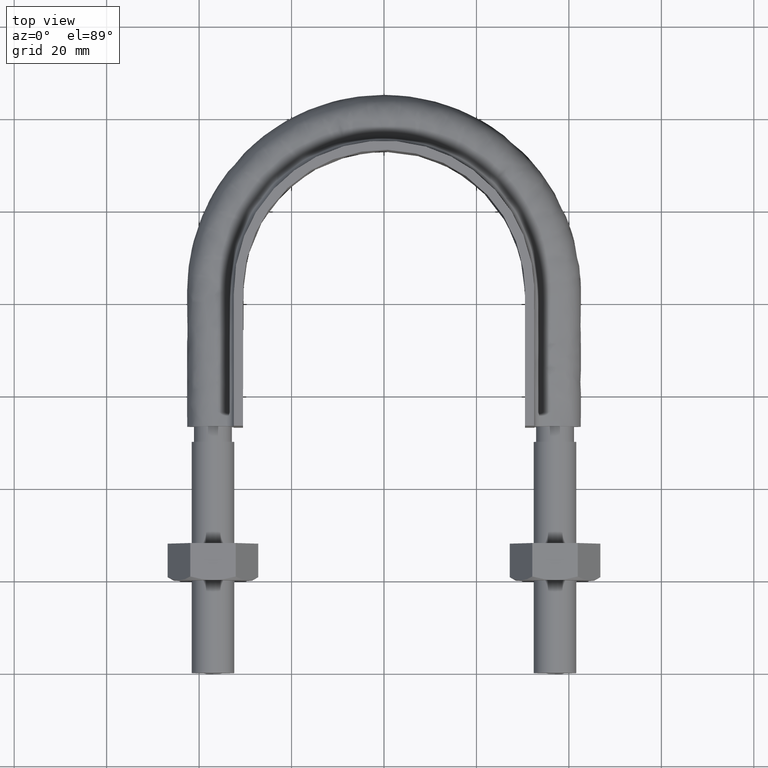
[diagram: clean part render]
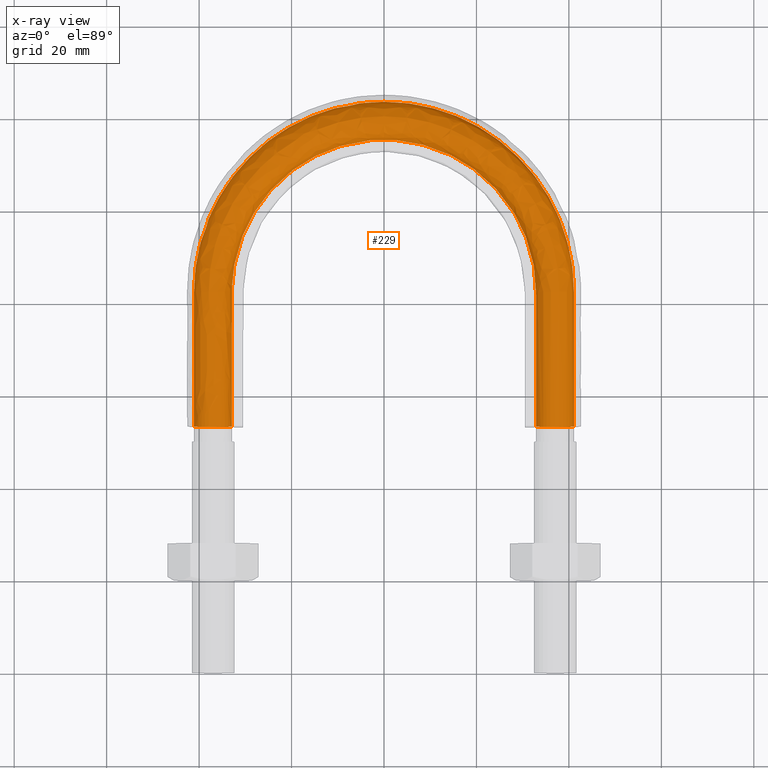
[diagram: x-ray — body ghosted, one internal face saturated and labeled with its STEP entity id]
A machine part, top view, then the same camera in x-ray: the body is ghosted and one INTERNAL B-rep face — a face not visible from any outside direction — is saturated and labeled: STEP entity #229.
In plain terms, the highlighted face is a freeform B-spline surface patch.
Its self-contained STEP definition (entity closure, byte-faithful):
#229 = ADVANCED_FACE( '', ( #321, #322 ), #323, .T. );
#321 = FACE_OUTER_BOUND( '', #1169, .T. );
#322 = FACE_OUTER_BOUND( '', #1170, .T. );
#323 = B_SPLINE_SURFACE_WITH_KNOTS( '', 3, 3, ( ( #1171, #1172, #1173, #1174, #1175, #1176, #1177, #1178, #1179, #1180, #1181, #1182, #1183, #1184, #1185 ), ( #1186, #1187, #1188, #1189, #1190, #1191, #1192, #1193, #1194, #1195, #1196, #1197, #1198, #1199, #1200 ), ( #1201, #1202, #1203, #1204, #1205, #1206, #1207, #1208, #1209, #1210, #1211, #1212, #1213, #1214, #1215 ), ( #1216, #1217, #1218, #1219, #1220, #1221, #1222, #1223, #1224, #1225, #1226, #1227, #1228, #1229, #1230 ), ( #1231, #1232, #1233, #1234, #1235, #1236, #1237, #1238, #1239, #1240, #1241, #1242, #1243, #1244, #1245 ), ( #1246, #1247, #1248, #1249, #1250, #1251, #1252, #1253, #1254, #1255, #1256, #1257, #1258, #1259, #1260 ), ( #1261, #1262, #1263, #1264, #1265, #1266, #1267, #1268, #1269, #1270, #1271, #1272, #1273, #1274, #1275 ), ( #1276, #1277, #1278, #1279, #1280, #1281, #1282, #1283, #1284, #1285, #1286, #1287, #1288, #1289, #1290 ), ( #1291, #1292, #1293, #1294, #1295, #1296, #1297, #1298, #1299, #1300, #1301, #1302, #1303, #1304, #1305 ), ( #1306, #1307, #1308, #1309, #1310, #1311, #1312, #1313, #1314, #1315, #1316, #1317, #1318, #1319, #1320 ) ), .UNSPECIFIED., .T., .F., .F., ( 2, 1, 1, 1, 1, 1, 1, 1, 1, 1, 1, 2 ), ( 4, 3, 1, 1, 1, 1, 1, 3, 4 ), ( -0.285714285714286, -0.142857142857143, 0.000000000000000, 0.142857142857143, 0.285714285714286, 0.428571428571429, 0.571428571428571, 0.714285714285714, 0.857142857142857, 1.00000000000000, 1.14285714285714, 1.28571428571429 ), ( 0.000000000000000, 1.00000000000000, 2.00000000000000, 3.00000000000000, 4.00000000000000, 5.00000000000000, 6.00000000000000, 7.00000000000000, 8.00000000000000 ), .UNSPECIFIED. );
#1169 = EDGE_LOOP( '', ( #1543, #1544, #1545, #1546, #1547, #1548, #1549 ) );
#1170 = EDGE_LOOP( '', ( #1550, #1551, #1552, #1553, #1554, #1555, #1556 ) );
#1171 = CARTESIAN_POINT( '', ( 34.0768231851220, 49.4000000000000, -3.66554778583225 ) );
#1172 = CARTESIAN_POINT( '', ( 34.0768231851220, 60.4333333333333, -3.66554778583225 ) );
#1173 = CARTESIAN_POINT( '', ( 34.0768231851220, 71.4666666666667, -3.66554778583225 ) );
#1174 = CARTESIAN_POINT( '', ( 34.0768231851220, 82.5000000000000, -3.66554778583225 ) );
#1175 = CARTESIAN_POINT( '', ( 34.0768231851220, 88.4327570723327, -3.66554778583225 ) );
#1176 = CARTESIAN_POINT( '', ( 30.8909277492285, 100.340580999129, -3.66554778583225 ) );
#1177 = CARTESIAN_POINT( '', ( 17.8348854515344, 113.389300449916, -3.66554778583225 ) );
#1178 = CARTESIAN_POINT( '', ( 2.14101387717244E-014, 118.170584552725, -3.66554778583225 ) );
#1179 = CARTESIAN_POINT( '', ( -17.8348854515343, 113.389300449916, -3.66554778583225 ) );
#1180 = CARTESIAN_POINT( '', ( -30.8909277492285, 100.340580999129, -3.66554778583225 ) );
#1181 = CARTESIAN_POINT( '', ( -34.0768231851219, 88.4327570723327, -3.66554778583225 ) );
#1182 = CARTESIAN_POINT( '', ( -34.0768231851220, 82.5000000000000, -3.66554778583225 ) );
#1183 = CARTESIAN_POINT( '', ( -34.0768231851220, 71.4666666666667, -3.66554778583225 ) );
#1184 = CARTESIAN_POINT( '', ( -34.0768231851220, 60.4333333333333, -3.66554778583225 ) );
#1185 = CARTESIAN_POINT( '', ( -34.0768231851220, 49.4000000000000, -3.66554778583225 ) );
#1186 = CARTESIAN_POINT( '', ( 32.3115884074390, 49.4000000000000, 0.000000000000000 ) );
#1187 = CARTESIAN_POINT( '', ( 32.3115884074390, 60.4333333333333, 0.000000000000000 ) );
#1188 = CARTESIAN_POINT( '', ( 32.3115884074390, 71.4666666666667, 0.000000000000000 ) );
#1189 = CARTESIAN_POINT( '', ( 32.3115884074390, 82.5000000000000, 0.000000000000000 ) );
#1190 = CARTESIAN_POINT( '', ( 32.3115884074390, 88.1174282502450, 0.000000000000000 ) );
#1191 = CARTESIAN_POINT( '', ( 29.2907275286388, 99.4201443725038, 0.000000000000000 ) );
#1192 = CARTESIAN_POINT( '', ( 16.9110094234196, 111.788117543186, 0.000000000000000 ) );
#1193 = CARTESIAN_POINT( '', ( 2.11839220510742E-014, 116.323323839565, 0.000000000000000 ) );
#1194 = CARTESIAN_POINT( '', ( -16.9110094234195, 111.788117543186, 0.000000000000000 ) );
#1195 = CARTESIAN_POINT( '', ( -29.2907275286387, 99.4201443725038, 0.000000000000000 ) );
#1196 = CARTESIAN_POINT( '', ( -32.3115884074390, 88.1174282502451, 0.000000000000000 ) );
#1197 = CARTESIAN_POINT( '', ( -32.3115884074390, 82.5000000000000, 0.000000000000000 ) );
#1198 = CARTESIAN_POINT( '', ( -32.3115884074390, 71.4666666666667, 0.000000000000000 ) );
#1199 = CARTESIAN_POINT( '', ( -32.3115884074390, 60.4333333333333, 0.000000000000000 ) );
#1200 = CARTESIAN_POINT( '', ( -32.3115884074390, 49.4000000000000, 0.000000000000000 ) );
#1201 = CARTESIAN_POINT( '', ( 34.0768231851220, 49.4000000000000, 3.66554778583225 ) );
#1202 = CARTESIAN_POINT( '', ( 34.0768231851220, 60.4333333333333, 3.66554778583225 ) );
#1203 = CARTESIAN_POINT( '', ( 34.0768231851220, 71.4666666666667, 3.66554778583225 ) );
#1204 = CARTESIAN_POINT( '', ( 34.0768231851220, 82.5000000000000, 3.66554778583225 ) );
#1205 = CARTESIAN_POINT( '', ( 34.0768231851220, 88.4327570723327, 3.66554778583225 ) );
#1206 = CARTESIAN_POINT( '', ( 30.8909277492285, 100.340580999129, 3.66554778583225 ) );
#1207 = CARTESIAN_POINT( '', ( 17.8348854515344, 113.389300449916, 3.66554778583225 ) );
#1208 = CARTESIAN_POINT( '', ( 2.83490326756316E-014, 118.170584552725, 3.66554778583225 ) );
#1209 = CARTESIAN_POINT( '', ( -17.8348854515343, 113.389300449916, 3.66554778583225 ) );
#1210 = CARTESIAN_POINT( '', ( -30.8909277492285, 100.340580999129, 3.66554778583225 ) );
#1211 = CARTESIAN_POINT( '', ( -34.0768231851219, 88.4327570723327, 3.66554778583225 ) );
#1212 = CARTESIAN_POINT( '', ( -34.0768231851219, 82.5000000000000, 3.66554778583225 ) );
#1213 = CARTESIAN_POINT( '', ( -34.0768231851219, 71.4666666666667, 3.66554778583225 ) );
#1214 = CARTESIAN_POINT( '', ( -34.0768231851219, 60.4333333333333, 3.66554778583225 ) );
#1215 = CARTESIAN_POINT( '', ( -34.0768231851219, 49.4000000000000, 3.66554778583225 ) );
#1216 = CARTESIAN_POINT( '', ( 38.0432697263483, 49.4000000000000, 4.57086332538454 ) );
#1217 = CARTESIAN_POINT( '', ( 38.0432697263483, 60.4333333333333, 4.57086332538454 ) );
#1218 = CARTESIAN_POINT( '', ( 38.0432697263483, 71.4666666666667, 4.57086332538454 ) );
#1219 = CARTESIAN_POINT( '', ( 38.0432697263483, 82.5000000000000, 4.57086332538454 ) );
#1220 = CARTESIAN_POINT( '', ( 38.0432697263483, 89.1412945040279, 4.57086332538454 ) );
#1221 = CARTESIAN_POINT( '', ( 34.4865450067578, 102.408783325670, 4.57086332538453 ) );
#1222 = CARTESIAN_POINT( '', ( 19.9108160430718, 116.987125783158, 4.57086332538453 ) );
#1223 = CARTESIAN_POINT( '', ( 2.97246987709408E-014, 122.321341697943, 4.57086332538454 ) );
#1224 = CARTESIAN_POINT( '', ( -19.9108160430717, 116.987125783158, 4.57086332538453 ) );
#1225 = CARTESIAN_POINT( '', ( -34.4865450067578, 102.408783325670, 4.57086332538454 ) );
#1226 = CARTESIAN_POINT( '', ( -38.0432697263483, 89.1412945040279, 4.57086332538454 ) );
#1227 = CARTESIAN_POINT( '', ( -38.0432697263483, 82.5000000000000, 4.57086332538454 ) );
#1228 = CARTESIAN_POINT( '', ( -38.0432697263483, 71.4666666666667, 4.57086332538454 ) );
#1229 = CARTESIAN_POINT( '', ( -38.0432697263483, 60.4333333333333, 4.57086332538454 ) );
#1230 = CARTESIAN_POINT( '', ( -38.0432697263483, 49.4000000000000, 4.57086332538454 ) );
#1231 = CARTESIAN_POINT( '', ( 41.2241128848103, 49.4000000000000, 2.03422555230246 ) );
#1232 = CARTESIAN_POINT( '', ( 41.2241128848103, 60.4333333333333, 2.03422555230246 ) );
#1233 = CARTESIAN_POINT( '', ( 41.2241128848103, 71.4666666666667, 2.03422555230246 ) );
#1234 = CARTESIAN_POINT( '', ( 41.2241128848103, 82.5000000000000, 2.03422555230246 ) );
#1235 = CARTESIAN_POINT( '', ( 41.2241128848103, 89.7094974077345, 2.03422555230246 ) );
#1236 = CARTESIAN_POINT( '', ( 37.3700061690817, 104.067352816602, 2.03422555230246 ) );
#1237 = CARTESIAN_POINT( '', ( 21.5755831213373, 119.872357684720, 2.03422555230246 ) );
#1238 = CARTESIAN_POINT( '', ( 3.09996889543388E-014, 125.649990484855, 2.03422555230247 ) );
#1239 = CARTESIAN_POINT( '', ( -21.5755831213373, 119.872357684720, 2.03422555230246 ) );
#1240 = CARTESIAN_POINT( '', ( -37.3700061690816, 104.067352816603, 2.03422555230247 ) );
#1241 = CARTESIAN_POINT( '', ( -41.2241128848102, 89.7094974077346, 2.03422555230246 ) );
#1242 = CARTESIAN_POINT( '', ( -41.2241128848102, 82.5000000000000, 2.03422555230246 ) );
#1243 = CARTESIAN_POINT( '', ( -41.2241128848102, 71.4666666666667, 2.03422555230246 ) );
#1244 = CARTESIAN_POINT( '', ( -41.2241128848102, 60.4333333333333, 2.03422555230246 ) );
#1245 = CARTESIAN_POINT( '', ( -41.2241128848102, 49.4000000000000, 2.03422555230246 ) );
#1246 = CARTESIAN_POINT( '', ( 41.2241128848103, 49.4000000000000, -2.03422555230246 ) );
#1247 = CARTESIAN_POINT( '', ( 41.2241128848103, 60.4333333333333, -2.03422555230246 ) );
#1248 = CARTESIAN_POINT( '', ( 41.2241128848103, 71.4666666666667, -2.03422555230246 ) );
#1249 = CARTESIAN_POINT( '', ( 41.2241128848103, 82.5000000000000, -2.03422555230246 ) );
#1250 = CARTESIAN_POINT( '', ( 41.2241128848103, 89.7094974077345, -2.03422555230246 ) );
#1251 = CARTESIAN_POINT( '', ( 37.3700061690817, 104.067352816602, -2.03422555230246 ) );
#1252 = CARTESIAN_POINT( '', ( 21.5755831213373, 119.872357684720, -2.03422555230246 ) );
#1253 = CARTESIAN_POINT( '', ( 2.66628802643967E-014, 125.649990484855, -2.03422555230246 ) );
#1254 = CARTESIAN_POINT( '', ( -21.5755831213373, 119.872357684720, -2.03422555230246 ) );
#1255 = CARTESIAN_POINT( '', ( -37.3700061690816, 104.067352816603, -2.03422555230246 ) );
#1256 = CARTESIAN_POINT( '', ( -41.2241128848102, 89.7094974077346, -2.03422555230246 ) );
#1257 = CARTESIAN_POINT( '', ( -41.2241128848102, 82.5000000000000, -2.03422555230246 ) );
#1258 = CARTESIAN_POINT( '', ( -41.2241128848102, 71.4666666666667, -2.03422555230246 ) );
#1259 = CARTESIAN_POINT( '', ( -41.2241128848102, 60.4333333333333, -2.03422555230246 ) );
#1260 = CARTESIAN_POINT( '', ( -41.2241128848102, 49.4000000000000, -2.03422555230246 ) );
#1261 = CARTESIAN_POINT( '', ( 38.0432697263483, 49.4000000000000, -4.57086332538454 ) );
#1262 = CARTESIAN_POINT( '', ( 38.0432697263483, 60.4333333333333, -4.57086332538454 ) );
#1263 = CARTESIAN_POINT( '', ( 38.0432697263483, 71.4666666666667, -4.57086332538454 ) );
#1264 = CARTESIAN_POINT( '', ( 38.0432697263483, 82.5000000000000, -4.57086332538454 ) );
#1265 = CARTESIAN_POINT( '', ( 38.0432697263483, 89.1412945040279, -4.57086332538454 ) );
#1266 = CARTESIAN_POINT( '', ( 34.4865450067578, 102.408783325670, -4.57086332538454 ) );
#1267 = CARTESIAN_POINT( '', ( 19.9108160430718, 116.987125783158, -4.57086332538453 ) );
#1268 = CARTESIAN_POINT( '', ( 2.36531666050220E-014, 122.321341697943, -4.57086332538454 ) );
#1269 = CARTESIAN_POINT( '', ( -19.9108160430717, 116.987125783158, -4.57086332538454 ) );
#1270 = CARTESIAN_POINT( '', ( -34.4865450067578, 102.408783325670, -4.57086332538454 ) );
#1271 = CARTESIAN_POINT( '', ( -38.0432697263483, 89.1412945040279, -4.57086332538454 ) );
#1272 = CARTESIAN_POINT( '', ( -38.0432697263483, 82.5000000000000, -4.57086332538454 ) );
#1273 = CARTESIAN_POINT( '', ( -38.0432697263483, 71.4666666666667, -4.57086332538454 ) );
#1274 = CARTESIAN_POINT( '', ( -38.0432697263483, 60.4333333333333, -4.57086332538454 ) );
#1275 = CARTESIAN_POINT( '', ( -38.0432697263483, 49.4000000000000, -4.57086332538454 ) );
#1276 = CARTESIAN_POINT( '', ( 34.0768231851220, 49.4000000000000, -3.66554778583225 ) );
#1277 = CARTESIAN_POINT( '', ( 34.0768231851220, 60.4333333333333, -3.66554778583225 ) );
#1278 = CARTESIAN_POINT( '', ( 34.0768231851220, 71.4666666666667, -3.66554778583225 ) );
#1279 = CARTESIAN_POINT( '', ( 34.0768231851220, 82.5000000000000, -3.66554778583225 ) );
#1280 = CARTESIAN_POINT( '', ( 34.0768231851220, 88.4327570723327, -3.66554778583225 ) );
#1281 = CARTESIAN_POINT( '', ( 30.8909277492285, 100.340580999129, -3.66554778583225 ) );
#1282 = CARTESIAN_POINT( '', ( 17.8348854515344, 113.389300449916, -3.66554778583225 ) );
#1283 = CARTESIAN_POINT( '', ( 2.14101387717244E-014, 118.170584552725, -3.66554778583225 ) );
#1284 = CARTESIAN_POINT( '', ( -17.8348854515343, 113.389300449916, -3.66554778583225 ) );
#1285 = CARTESIAN_POINT( '', ( -30.8909277492285, 100.340580999129, -3.66554778583225 ) );
#1286 = CARTESIAN_POINT( '', ( -34.0768231851219, 88.4327570723327, -3.66554778583225 ) );
#1287 = CARTESIAN_POINT( '', ( -34.0768231851220, 82.5000000000000, -3.66554778583225 ) );
#1288 = CARTESIAN_POINT( '', ( -34.0768231851220, 71.4666666666667, -3.66554778583225 ) );
#1289 = CARTESIAN_POINT( '', ( -34.0768231851220, 60.4333333333333, -3.66554778583225 ) );
#1290 = CARTESIAN_POINT( '', ( -34.0768231851220, 49.4000000000000, -3.66554778583225 ) );
#1291 = CARTESIAN_POINT( '', ( 32.3115884074390, 49.4000000000000, 0.000000000000000 ) );
#1292 = CARTESIAN_POINT( '', ( 32.3115884074390, 60.4333333333333, 0.000000000000000 ) );
#1293 = CARTESIAN_POINT( '', ( 32.3115884074390, 71.4666666666667, 0.000000000000000 ) );
#1294 = CARTESIAN_POINT( '', ( 32.3115884074390, 82.5000000000000, 0.000000000000000 ) );
#1295 = CARTESIAN_POINT( '', ( 32.3115884074390, 88.1174282502450, 0.000000000000000 ) );
#1296 = CARTESIAN_POINT( '', ( 29.2907275286388, 99.4201443725038, 0.000000000000000 ) );
#1297 = CARTESIAN_POINT( '', ( 16.9110094234196, 111.788117543186, 0.000000000000000 ) );
#1298 = CARTESIAN_POINT( '', ( 2.11839220510742E-014, 116.323323839565, 0.000000000000000 ) );
#1299 = CARTESIAN_POINT( '', ( -16.9110094234195, 111.788117543186, 0.000000000000000 ) );
#1300 = CARTESIAN_POINT( '', ( -29.2907275286387, 99.4201443725038, 0.000000000000000 ) );
#1301 = CARTESIAN_POINT( '', ( -32.3115884074390, 88.1174282502451, 0.000000000000000 ) );
#1302 = CARTESIAN_POINT( '', ( -32.3115884074390, 82.5000000000000, 0.000000000000000 ) );
#1303 = CARTESIAN_POINT( '', ( -32.3115884074390, 71.4666666666667, 0.000000000000000 ) );
#1304 = CARTESIAN_POINT( '', ( -32.3115884074390, 60.4333333333333, 0.000000000000000 ) );
#1305 = CARTESIAN_POINT( '', ( -32.3115884074390, 49.4000000000000, 0.000000000000000 ) );
#1306 = CARTESIAN_POINT( '', ( 34.0768231851220, 49.4000000000000, 3.66554778583225 ) );
#1307 = CARTESIAN_POINT( '', ( 34.0768231851220, 60.4333333333333, 3.66554778583225 ) );
#1308 = CARTESIAN_POINT( '', ( 34.0768231851220, 71.4666666666667, 3.66554778583225 ) );
#1309 = CARTESIAN_POINT( '', ( 34.0768231851220, 82.5000000000000, 3.66554778583225 ) );
#1310 = CARTESIAN_POINT( '', ( 34.0768231851220, 88.4327570723327, 3.66554778583225 ) );
#1311 = CARTESIAN_POINT( '', ( 30.8909277492285, 100.340580999129, 3.66554778583225 ) );
#1312 = CARTESIAN_POINT( '', ( 17.8348854515344, 113.389300449916, 3.66554778583225 ) );
#1313 = CARTESIAN_POINT( '', ( 2.83490326756316E-014, 118.170584552725, 3.66554778583225 ) );
#1314 = CARTESIAN_POINT( '', ( -17.8348854515343, 113.389300449916, 3.66554778583225 ) );
#1315 = CARTESIAN_POINT( '', ( -30.8909277492285, 100.340580999129, 3.66554778583225 ) );
#1316 = CARTESIAN_POINT( '', ( -34.0768231851219, 88.4327570723327, 3.66554778583225 ) );
#1317 = CARTESIAN_POINT( '', ( -34.0768231851219, 82.5000000000000, 3.66554778583225 ) );
#1318 = CARTESIAN_POINT( '', ( -34.0768231851219, 71.4666666666667, 3.66554778583225 ) );
#1319 = CARTESIAN_POINT( '', ( -34.0768231851219, 60.4333333333333, 3.66554778583225 ) );
#1320 = CARTESIAN_POINT( '', ( -34.0768231851219, 49.4000000000000, 3.66554778583225 ) );
#1543 = ORIENTED_EDGE( '', *, *, #2027, .T. );
#1544 = ORIENTED_EDGE( '', *, *, #2028, .T. );
#1545 = ORIENTED_EDGE( '', *, *, #2029, .T. );
#1546 = ORIENTED_EDGE( '', *, *, #2030, .T. );
#1547 = ORIENTED_EDGE( '', *, *, #2031, .T. );
#1548 = ORIENTED_EDGE( '', *, *, #2032, .T. );
#1549 = ORIENTED_EDGE( '', *, *, #2033, .T. );
#1550 = ORIENTED_EDGE( '', *, *, #2034, .T. );
#1551 = ORIENTED_EDGE( '', *, *, #2035, .F. );
#1552 = ORIENTED_EDGE( '', *, *, #2036, .F. );
#1553 = ORIENTED_EDGE( '', *, *, #2037, .F. );
#1554 = ORIENTED_EDGE( '', *, *, #2038, .F. );
#1555 = ORIENTED_EDGE( '', *, *, #2039, .F. );
#1556 = ORIENTED_EDGE( '', *, *, #2040, .F. );
#2027 = EDGE_CURVE( '', #2179, #2190, #2199, .T. );
#2028 = EDGE_CURVE( '', #2190, #2188, #2200, .T. );
#2029 = EDGE_CURVE( '', #2188, #2186, #2201, .T. );
#2030 = EDGE_CURVE( '', #2186, #2184, #2202, .T. );
#2031 = EDGE_CURVE( '', #2184, #2182, #2203, .T. );
#2032 = EDGE_CURVE( '', #2182, #2180, #2204, .T. );
#2033 = EDGE_CURVE( '', #2180, #2179, #2205, .T. );
#2034 = EDGE_CURVE( '', #2206, #2207, #2208, .T. );
#2035 = EDGE_CURVE( '', #2209, #2207, #2210, .T. );
#2036 = EDGE_CURVE( '', #2211, #2209, #2212, .T. );
#2037 = EDGE_CURVE( '', #2213, #2211, #2214, .T. );
#2038 = EDGE_CURVE( '', #2215, #2213, #2216, .T. );
#2039 = EDGE_CURVE( '', #2217, #2215, #2218, .T. );
#2040 = EDGE_CURVE( '', #2206, #2217, #2219, .T. );
#2179 = VERTEX_POINT( '', #2634 );
#2180 = VERTEX_POINT( '', #2635 );
#2182 = VERTEX_POINT( '', #2637 );
#2184 = VERTEX_POINT( '', #2639 );
#2186 = VERTEX_POINT( '', #2641 );
#2188 = VERTEX_POINT( '', #2643 );
#2190 = VERTEX_POINT( '', #2645 );
#2199 = B_SPLINE_CURVE_WITH_KNOTS( '', 3, ( #2654, #2655, #2656, #2657 ), .UNSPECIFIED., .F., .F., ( 4, 4 ), ( 5.20417042793042E-017, 0.00365969768494586 ), .UNSPECIFIED. );
#2200 = B_SPLINE_CURVE_WITH_KNOTS( '', 3, ( #2658, #2659, #2660, #2661 ), .UNSPECIFIED., .F., .F., ( 4, 4 ), ( 0.00365969768494586, 0.00731437302338646 ), .UNSPECIFIED. );
#2201 = B_SPLINE_CURVE_WITH_KNOTS( '', 3, ( #2662, #2663, #2664, #2665 ), .UNSPECIFIED., .F., .F., ( 4, 4 ), ( 0.00731437302338646, 0.0109748044148778 ), .UNSPECIFIED. );
#2202 = B_SPLINE_CURVE_WITH_KNOTS( '', 3, ( #2666, #2667, #2668, #2669 ), .UNSPECIFIED., .F., .F., ( 4, 4 ), ( 0.0109748044148778, 0.0146317467085366 ), .UNSPECIFIED. );
#2203 = B_SPLINE_CURVE_WITH_KNOTS( '', 3, ( #2670, #2671, #2672, #2673 ), .UNSPECIFIED., .F., .F., ( 4, 4 ), ( 0.0146317467085366, 0.0182856759681252 ), .UNSPECIFIED. );
#2204 = B_SPLINE_CURVE_WITH_KNOTS( '', 3, ( #2674, #2675, #2676, #2677 ), .UNSPECIFIED., .F., .F., ( 4, 4 ), ( 0.0182856759681252, 0.0219456464543596 ), .UNSPECIFIED. );
#2205 = B_SPLINE_CURVE_WITH_KNOTS( '', 3, ( #2678, #2679, #2680, #2681 ), .UNSPECIFIED., .F., .F., ( 4, 4 ), ( 0.0219456464543596, 0.0255944202292315 ), .UNSPECIFIED. );
#2206 = VERTEX_POINT( '', #2682 );
#2207 = VERTEX_POINT( '', #2683 );
#2208 = B_SPLINE_CURVE_WITH_KNOTS( '', 3, ( #2684, #2685, #2686, #2687 ), .UNSPECIFIED., .F., .F., ( 4, 4 ), ( 3.20563638633654E-016, 0.00365969768494537 ), .UNSPECIFIED. );
#2209 = VERTEX_POINT( '', #2688 );
#2210 = B_SPLINE_CURVE_WITH_KNOTS( '', 3, ( #2689, #2690, #2691, #2692 ), .UNSPECIFIED., .F., .F., ( 4, 4 ), ( -0.285714285714286, -0.142857142857143 ), .UNSPECIFIED. );
#2211 = VERTEX_POINT( '', #2693 );
#2212 = B_SPLINE_CURVE_WITH_KNOTS( '', 3, ( #2694, #2695, #2696, #2697 ), .UNSPECIFIED., .F., .F., ( 4, 4 ), ( -0.428571428571429, -0.285714285714286 ), .UNSPECIFIED. );
#2213 = VERTEX_POINT( '', #2698 );
#2214 = B_SPLINE_CURVE_WITH_KNOTS( '', 3, ( #2699, #2700, #2701, #2702 ), .UNSPECIFIED., .F., .F., ( 4, 4 ), ( -0.571428571428571, -0.428571428571429 ), .UNSPECIFIED. );
#2215 = VERTEX_POINT( '', #2703 );
#2216 = B_SPLINE_CURVE_WITH_KNOTS( '', 3, ( #2704, #2705, #2706, #2707 ), .UNSPECIFIED., .F., .F., ( 4, 4 ), ( -0.714285714285714, -0.571428571428571 ), .UNSPECIFIED. );
#2217 = VERTEX_POINT( '', #2708 );
#2218 = B_SPLINE_CURVE_WITH_KNOTS( '', 3, ( #2709, #2710, #2711, #2712 ), .UNSPECIFIED., .F., .F., ( 4, 4 ), ( -0.857142857142857, -0.714285714285714 ), .UNSPECIFIED. );
#2219 = B_SPLINE_CURVE_WITH_KNOTS( '', 3, ( #2713, #2714, #2715, #2716 ), .UNSPECIFIED., .F., .F., ( 4, 4 ), ( -1.00000000000000, -0.857142857142857 ), .UNSPECIFIED. );
#2634 = CARTESIAN_POINT( '', ( -32.9000000000000, 53.3000000000001, 5.38378651292854E-014 ) );
#2635 = CARTESIAN_POINT( '', ( -34.4436918124004, 53.3000000000000, 3.20550907813581 ) );
#2637 = CARTESIAN_POINT( '', ( -37.9123358292393, 53.3000000000000, 3.99720443994127 ) );
#2639 = CARTESIAN_POINT( '', ( -40.6939723584001, 53.3000000000000, 1.77892333038163 ) );
#2641 = CARTESIAN_POINT( '', ( -40.6939723583999, 53.3000000000000, -1.77892333038198 ) );
#2643 = CARTESIAN_POINT( '', ( -37.9123358292208, 53.3000000000000, -3.99720443994549 ) );
#2645 = CARTESIAN_POINT( '', ( -34.4436918123793, 53.3000000000000, -3.20550907811902 ) );
#2654 = CARTESIAN_POINT( '', ( -32.9000000000000, 53.3000000000001, -5.23669649310499E-014 ) );
#2655 = CARTESIAN_POINT( '', ( -32.9000000000000, 53.3000000000001, -1.22184926194416 ) );
#2656 = CARTESIAN_POINT( '', ( -33.4884115925610, 53.3000000000001, -2.44369852388827 ) );
#2657 = CARTESIAN_POINT( '', ( -34.4436918123793, 53.3000000000001, -3.20550907811902 ) );
#2658 = CARTESIAN_POINT( '', ( -34.4436918123793, 53.3000000000001, -3.20550907811900 ) );
#2659 = CARTESIAN_POINT( '', ( -35.3989720321975, 53.3000000000001, -3.96731963234969 ) );
#2660 = CARTESIAN_POINT( '', ( -36.7211208792728, 53.3000000000001, -4.26909147886709 ) );
#2661 = CARTESIAN_POINT( '', ( -37.9123358292208, 53.3000000000001, -3.99720443994549 ) );
#2662 = CARTESIAN_POINT( '', ( -37.9123358292208, 53.3000000000001, -3.99720443994549 ) );
#2663 = CARTESIAN_POINT( '', ( -39.1035507791689, 53.3000000000001, -3.72531740102387 ) );
#2664 = CARTESIAN_POINT( '', ( -40.1638318319896, 53.3000000000001, -2.87977147666317 ) );
#2665 = CARTESIAN_POINT( '', ( -40.6939723583999, 53.3000000000001, -1.77892333038197 ) );
#2666 = CARTESIAN_POINT( '', ( -40.6939723583998, 53.3000000000001, -1.77892333038210 ) );
#2667 = CARTESIAN_POINT( '', ( -41.2241128848102, 53.3000000000001, -0.678075184101007 ) );
#2668 = CARTESIAN_POINT( '', ( -41.2241128848102, 53.3000000000001, 0.678075184100524 ) );
#2669 = CARTESIAN_POINT( '', ( -40.6939723584001, 53.3000000000001, 1.77892333038162 ) );
#2670 = CARTESIAN_POINT( '', ( -40.6939723584028, 53.3000000000001, 1.77892333037536 ) );
#2671 = CARTESIAN_POINT( '', ( -40.1638318319953, 53.3000000000001, 2.87977147665511 ) );
#2672 = CARTESIAN_POINT( '', ( -39.1035507791800, 53.3000000000001, 3.72531740101510 ) );
#2673 = CARTESIAN_POINT( '', ( -37.9123358292393, 53.3000000000001, 3.99720443994127 ) );
#2674 = CARTESIAN_POINT( '', ( -37.9123358292488, 53.3000000000001, 3.99720443993874 ) );
#2675 = CARTESIAN_POINT( '', ( -36.7211208793001, 53.3000000000001, 4.26909147886933 ) );
#2676 = CARTESIAN_POINT( '', ( -35.3989720322218, 53.3000000000001, 3.96731963235807 ) );
#2677 = CARTESIAN_POINT( '', ( -34.4436918124003, 53.3000000000001, 3.20550907813581 ) );
#2678 = CARTESIAN_POINT( '', ( -34.4436918124004, 53.3000000000001, 3.20550907813581 ) );
#2679 = CARTESIAN_POINT( '', ( -33.4884115925697, 53.3000000000001, 2.44369852390623 ) );
#2680 = CARTESIAN_POINT( '', ( -32.9000000000000, 53.3000000000001, 1.22184926195311 ) );
#2681 = CARTESIAN_POINT( '', ( -32.9000000000000, 53.3000000000001, 4.33680868994202E-016 ) );
#2682 = CARTESIAN_POINT( '', ( 32.9000000000000, 53.3000000000000, 3.25958505856969E-013 ) );
#2683 = CARTESIAN_POINT( '', ( 34.4436918123789, 53.3000000000001, 3.20550907811872 ) );
#2684 = CARTESIAN_POINT( '', ( 32.9000000000000, 53.3000000000001, 5.42101086242752E-016 ) );
#2685 = CARTESIAN_POINT( '', ( 32.9000000000000, 53.3000000000001, 1.22184926194397 ) );
#2686 = CARTESIAN_POINT( '', ( 33.4884115925609, 53.3000000000001, 2.44369852388794 ) );
#2687 = CARTESIAN_POINT( '', ( 34.4436918123789, 53.3000000000001, 3.20550907811871 ) );
#2688 = CARTESIAN_POINT( '', ( 37.9123358292209, 53.3000000000001, 3.99720443994547 ) );
#2689 = CARTESIAN_POINT( '', ( 37.9123358292208, 53.3000000000001, 3.99720443994550 ) );
#2690 = CARTESIAN_POINT( '', ( 36.7211208792727, 53.3000000000001, 4.26909147886712 ) );
#2691 = CARTESIAN_POINT( '', ( 35.3989720321972, 53.3000000000001, 3.96731963234963 ) );
#2692 = CARTESIAN_POINT( '', ( 34.4436918123789, 53.3000000000001, 3.20550907811872 ) );
#2693 = CARTESIAN_POINT( '', ( 40.6939723583998, 53.3000000000001, 1.77892333038233 ) );
#2694 = CARTESIAN_POINT( '', ( 40.6939723583998, 53.3000000000001, 1.77892333038231 ) );
#2695 = CARTESIAN_POINT( '', ( 40.1638318319894, 53.3000000000001, 2.87977147666332 ) );
#2696 = CARTESIAN_POINT( '', ( 39.1035507791688, 53.3000000000001, 3.72531740102386 ) );
#2697 = CARTESIAN_POINT( '', ( 37.9123358292209, 53.3000000000001, 3.99720443994547 ) );
#2698 = CARTESIAN_POINT( '', ( 40.6939723584000, 53.3000000000001, -1.77892333038182 ) );
#2699 = CARTESIAN_POINT( '', ( 40.6939723584001, 53.3000000000001, -1.77892333038170 ) );
#2700 = CARTESIAN_POINT( '', ( 41.2241128848103, 53.3000000000001, -0.678075184100499 ) );
#2701 = CARTESIAN_POINT( '', ( 41.2241128848102, 53.3000000000001, 0.678075184101153 ) );
#2702 = CARTESIAN_POINT( '', ( 40.6939723583998, 53.3000000000001, 1.77892333038232 ) );
#2703 = CARTESIAN_POINT( '', ( 37.9123358292214, 53.3000000000001, -3.99720443994537 ) );
#2704 = CARTESIAN_POINT( '', ( 37.9123358292214, 53.3000000000001, -3.99720443994535 ) );
#2705 = CARTESIAN_POINT( '', ( 39.1035507791693, 53.3000000000001, -3.72531740102358 ) );
#2706 = CARTESIAN_POINT( '', ( 40.1638318319898, 53.3000000000001, -2.87977147666292 ) );
#2707 = CARTESIAN_POINT( '', ( 40.6939723584000, 53.3000000000001, -1.77892333038181 ) );
#2708 = CARTESIAN_POINT( '', ( 34.4436918123815, 53.3000000000001, -3.20550907812077 ) );
#2709 = CARTESIAN_POINT( '', ( 34.4436918123817, 53.3000000000001, -3.20550907812088 ) );
#2710 = CARTESIAN_POINT( '', ( 35.3989720321998, 53.3000000000001, -3.96731963235029 ) );
#2711 = CARTESIAN_POINT( '', ( 36.7211208792742, 53.3000000000001, -4.26909147886697 ) );
#2712 = CARTESIAN_POINT( '', ( 37.9123358292214, 53.3000000000001, -3.99720443994537 ) );
#2713 = CARTESIAN_POINT( '', ( 32.9000000000000, 53.3000000000001, -1.06544547490151E-012 ) );
#2714 = CARTESIAN_POINT( '', ( 32.9000000000002, 53.3000000000001, -1.22184926194556 ) );
#2715 = CARTESIAN_POINT( '', ( 33.4884115925619, 53.3000000000001, -2.44369852389014 ) );
#2716 = CARTESIAN_POINT( '', ( 34.4436918123815, 53.3000000000001, -3.20550907812076 ) );